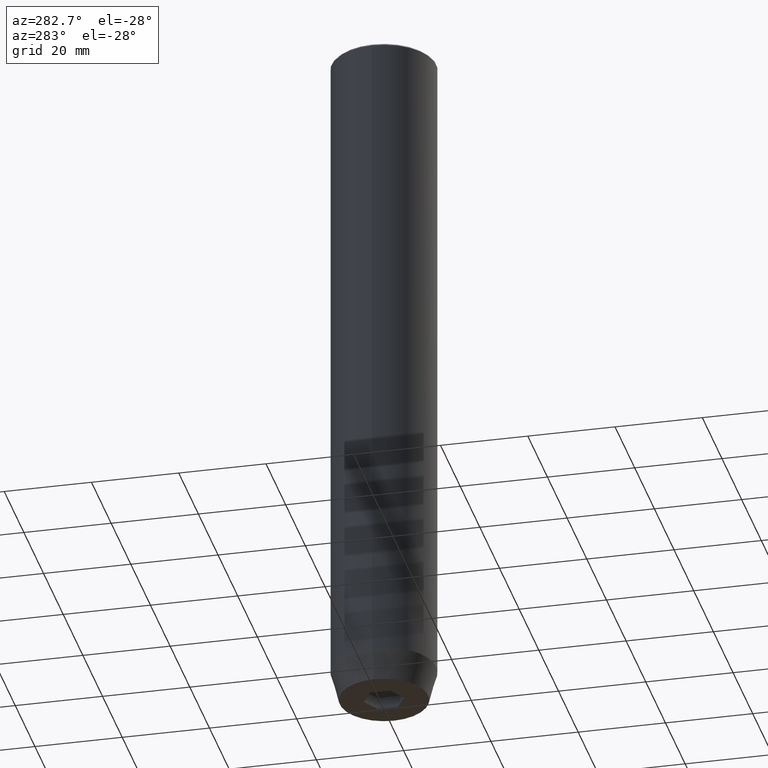
[diagram: clean part render]
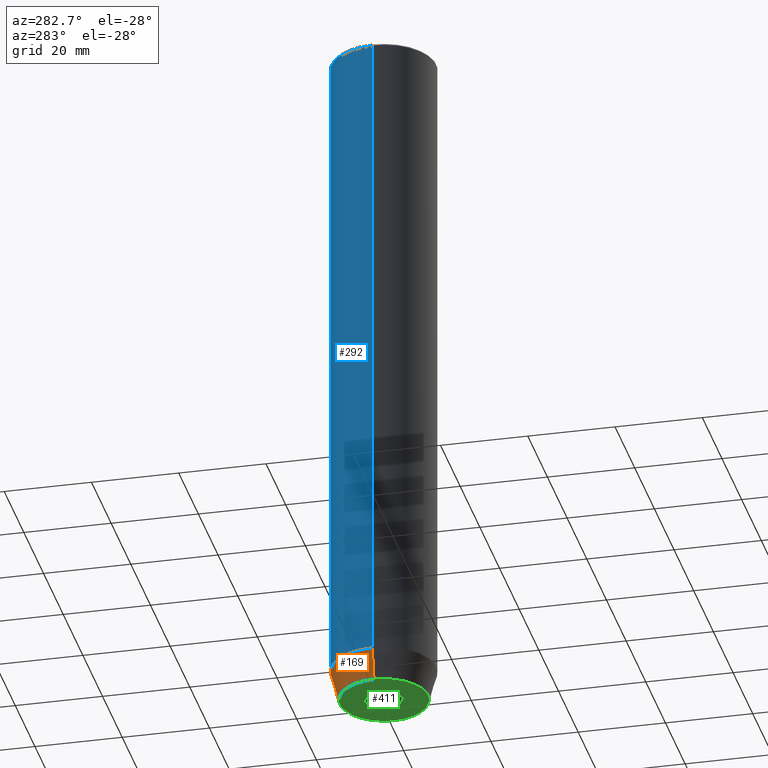
[diagram: same view with three faces highlighted in distinct colors, each labeled with its STEP entity id]
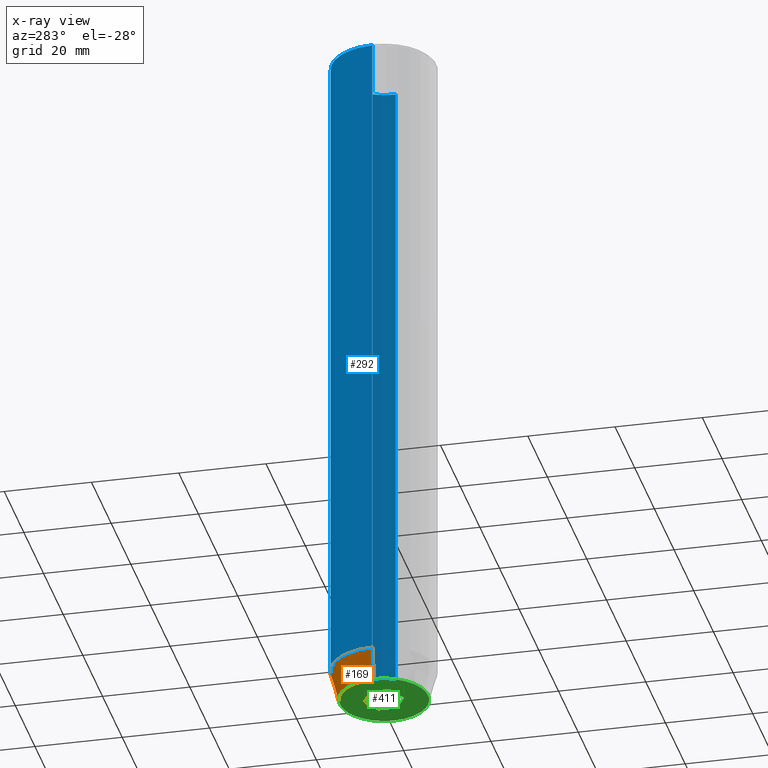
[diagram: x-ray of the same camera — body ghosted, the three highlighted faces saturated]
A machine part, auxiliary view with three faces highlighted in distinct colors.
The next image is the same camera in x-ray (body ghosted, the three faces saturated) — at least one of them is partly hidden behind the body in this view.
Their STEP definitions:

[orange] entity #169 — the highlighted conical surface has half-angle 15 deg.
#6 = EDGE_CURVE ( 'NONE', #458, #558, #79, .T. ) ;
#29 = DIRECTION ( 'NONE',  ( 0.2588190451025212391, 0.000000000000000000, 0.9659258262890680902 ) ) ;
#32 = VECTOR ( 'NONE', #29, 1000.000000000000114 ) ;
#38 = LINE ( 'NONE', #431, #445 ) ;
#60 = EDGE_CURVE ( 'NONE', #583, #458, #381, .T. ) ;
#79 = CIRCLE ( 'NONE', #341, 12.00000000000000000 ) ;
#81 = ORIENTED_EDGE ( 'NONE', *, *, #454, .T. ) ;
#110 = AXIS2_PLACEMENT_3D ( 'NONE', #384, #571, #113 ) ;
#113 = DIRECTION ( 'NONE',  ( 1.000000000000000000, 0.000000000000000000, 0.000000000000000000 ) ) ;
#117 = DIRECTION ( 'NONE',  ( -0.000000000000000000, -0.000000000000000000, 1.000000000000000000 ) ) ;
#169 = ADVANCED_FACE ( 'NONE', ( #425 ), #514, .T. ) ;
#198 = VERTEX_POINT ( 'NONE', #478 ) ;
#204 = DIRECTION ( 'NONE',  ( -0.2588190451025212391, 3.169619151431771721E-17, 0.9659258262890680902 ) ) ;
#214 = EDGE_CURVE ( 'NONE', #198, #558, #38, .T. ) ;
#223 = ORIENTED_EDGE ( 'NONE', *, *, #60, .F. ) ;
#286 = CARTESIAN_POINT ( 'NONE',  ( 0.000000000000000000, 0.000000000000000000, -152.9999999999999716 ) ) ;
#287 = CARTESIAN_POINT ( 'NONE',  ( 12.00000000000000000, 0.000000000000000000, -152.9999999999999716 ) ) ;
#300 = DIRECTION ( 'NONE',  ( 1.000000000000000000, 0.000000000000000000, 0.000000000000000000 ) ) ;
#341 = AXIS2_PLACEMENT_3D ( 'NONE', #286, #117, #300 ) ;
#345 = DIRECTION ( 'NONE',  ( 1.000000000000000000, 0.000000000000000000, 0.000000000000000000 ) ) ;
#375 = AXIS2_PLACEMENT_3D ( 'NONE', #573, #527, #345 ) ;
#381 = LINE ( 'NONE', #426, #32 ) ;
#384 = CARTESIAN_POINT ( 'NONE',  ( 0.000000000000000000, 0.000000000000000000, -152.9999999999999716 ) ) ;
#425 = FACE_OUTER_BOUND ( 'NONE', #587, .T. ) ;
#426 = CARTESIAN_POINT ( 'NONE',  ( 12.00000000000000000, 0.000000000000000000, -152.9999999999999716 ) ) ;
#427 = CARTESIAN_POINT ( 'NONE',  ( -12.00000000000000000, 1.469576158976823947E-15, -152.9999999999999716 ) ) ;
#431 = CARTESIAN_POINT ( 'NONE',  ( -12.00000000000000000, 1.469576158976823947E-15, -152.9999999999999716 ) ) ;
#444 = ORIENTED_EDGE ( 'NONE', *, *, #214, .T. ) ;
#445 = VECTOR ( 'NONE', #204, 1000.000000000000114 ) ;
#454 = EDGE_CURVE ( 'NONE', #583, #198, #529, .T. ) ;
#458 = VERTEX_POINT ( 'NONE', #287 ) ;
#478 = CARTESIAN_POINT ( 'NONE',  ( -10.12435565298212836, 1.354726066681110655E-15, -160.0000000000000000 ) ) ;
#514 = CONICAL_SURFACE ( 'NONE', #110, 12.00000000000000000, 0.2617993877991499629 ) ;
#527 = DIRECTION ( 'NONE',  ( -0.000000000000000000, -0.000000000000000000, 1.000000000000000000 ) ) ;
#529 = CIRCLE ( 'NONE', #375, 10.12435565298212836 ) ;
#549 = ORIENTED_EDGE ( 'NONE', *, *, #6, .F. ) ;
#558 = VERTEX_POINT ( 'NONE', #427 ) ;
#568 = CARTESIAN_POINT ( 'NONE',  ( 10.12435565298212836, 0.000000000000000000, -160.0000000000000000 ) ) ;
#571 = DIRECTION ( 'NONE',  ( -0.000000000000000000, -0.000000000000000000, 1.000000000000000000 ) ) ;
#573 = CARTESIAN_POINT ( 'NONE',  ( 0.000000000000000000, 0.000000000000000000, -160.0000000000000000 ) ) ;
#583 = VERTEX_POINT ( 'NONE', #568 ) ;
#587 = EDGE_LOOP ( 'NONE', ( #81, #444, #549, #223 ) ) ;

[blue] entity #292 — the highlighted cylindrical surface (partial cylindrical patch) has radius 12 mm, axis along (-0, -0, 1).
#6 = EDGE_CURVE ( 'NONE', #458, #558, #79, .T. ) ;
#18 = CARTESIAN_POINT ( 'NONE',  ( 0.000000000000000000, 0.000000000000000000, 0.000000000000000000 ) ) ;
#26 = CARTESIAN_POINT ( 'NONE',  ( 0.000000000000000000, 0.000000000000000000, -0.4999999999999779066 ) ) ;
#79 = CIRCLE ( 'NONE', #341, 12.00000000000000000 ) ;
#88 = CARTESIAN_POINT ( 'NONE',  ( 12.00000000000000000, 0.000000000000000000, -0.4999999999999779066 ) ) ;
#91 = ORIENTED_EDGE ( 'NONE', *, *, #488, .T. ) ;
#97 = VECTOR ( 'NONE', #158, 1000.000000000000000 ) ;
#117 = DIRECTION ( 'NONE',  ( -0.000000000000000000, -0.000000000000000000, 1.000000000000000000 ) ) ;
#128 = CIRCLE ( 'NONE', #183, 12.00000000000000000 ) ;
#151 = LINE ( 'NONE', #428, #97 ) ;
#158 = DIRECTION ( 'NONE',  ( -0.000000000000000000, -0.000000000000000000, 1.000000000000000000 ) ) ;
#183 = AXIS2_PLACEMENT_3D ( 'NONE', #26, #193, #379 ) ;
#186 = VERTEX_POINT ( 'NONE', #579 ) ;
#193 = DIRECTION ( 'NONE',  ( 0.000000000000000000, 0.000000000000000000, -1.000000000000000000 ) ) ;
#200 = LINE ( 'NONE', #468, #538 ) ;
#215 = AXIS2_PLACEMENT_3D ( 'NONE', #18, #412, #555 ) ;
#237 = EDGE_CURVE ( 'NONE', #458, #334, #151, .T. ) ;
#269 = CYLINDRICAL_SURFACE ( 'NONE', #215, 12.00000000000000000 ) ;
#275 = FACE_OUTER_BOUND ( 'NONE', #355, .T. ) ;
#286 = CARTESIAN_POINT ( 'NONE',  ( 0.000000000000000000, 0.000000000000000000, -152.9999999999999716 ) ) ;
#287 = CARTESIAN_POINT ( 'NONE',  ( 12.00000000000000000, 0.000000000000000000, -152.9999999999999716 ) ) ;
#292 = ADVANCED_FACE ( 'NONE', ( #275 ), #269, .T. ) ;
#300 = DIRECTION ( 'NONE',  ( 1.000000000000000000, 0.000000000000000000, 0.000000000000000000 ) ) ;
#334 = VERTEX_POINT ( 'NONE', #88 ) ;
#341 = AXIS2_PLACEMENT_3D ( 'NONE', #286, #117, #300 ) ;
#355 = EDGE_LOOP ( 'NONE', ( #473, #91, #545, #358 ) ) ;
#358 = ORIENTED_EDGE ( 'NONE', *, *, #237, .F. ) ;
#379 = DIRECTION ( 'NONE',  ( 1.000000000000000000, 0.000000000000000000, 0.000000000000000000 ) ) ;
#383 = DIRECTION ( 'NONE',  ( -0.000000000000000000, -0.000000000000000000, 1.000000000000000000 ) ) ;
#412 = DIRECTION ( 'NONE',  ( -0.000000000000000000, -0.000000000000000000, 1.000000000000000000 ) ) ;
#427 = CARTESIAN_POINT ( 'NONE',  ( -12.00000000000000000, 1.469576158976823947E-15, -152.9999999999999716 ) ) ;
#428 = CARTESIAN_POINT ( 'NONE',  ( 12.00000000000000000, 0.000000000000000000, 0.000000000000000000 ) ) ;
#447 = EDGE_CURVE ( 'NONE', #186, #334, #128, .T. ) ;
#458 = VERTEX_POINT ( 'NONE', #287 ) ;
#468 = CARTESIAN_POINT ( 'NONE',  ( -12.00000000000000000, 1.469576158976823947E-15, 0.000000000000000000 ) ) ;
#473 = ORIENTED_EDGE ( 'NONE', *, *, #6, .T. ) ;
#488 = EDGE_CURVE ( 'NONE', #558, #186, #200, .T. ) ;
#538 = VECTOR ( 'NONE', #383, 1000.000000000000000 ) ;
#545 = ORIENTED_EDGE ( 'NONE', *, *, #447, .T. ) ;
#555 = DIRECTION ( 'NONE',  ( 1.000000000000000000, 0.000000000000000000, 0.000000000000000000 ) ) ;
#558 = VERTEX_POINT ( 'NONE', #427 ) ;
#579 = CARTESIAN_POINT ( 'NONE',  ( -12.00000000000000000, 1.469576158976823947E-15, -0.4999999999999779066 ) ) ;

[green] entity #411 — the highlighted planar face has unit normal (0, 0, -1).
#2 = EDGE_CURVE ( 'NONE', #234, #451, #333, .T. ) ;
#11 = CARTESIAN_POINT ( 'NONE',  ( 0.000000000000000000, 10.12435565298212836, -160.0000000000000000 ) ) ;
#25 = ORIENTED_EDGE ( 'NONE', *, *, #212, .F. ) ;
#35 = LINE ( 'NONE', #62, #176 ) ;
#43 = DIRECTION ( 'NONE',  ( 0.8660254037844387076, 0.5000000000000001110, 0.000000000000000000 ) ) ;
#53 = PLANE ( 'NONE',  #574 ) ;
#55 = VECTOR ( 'NONE', #565, 1000.000000000000000 ) ;
#62 = CARTESIAN_POINT ( 'NONE',  ( -4.000000000000000000, 0.000000000000000000, -160.0000000000000000 ) ) ;
#68 = EDGE_CURVE ( 'NONE', #451, #108, #350, .T. ) ;
#73 = VECTOR ( 'NONE', #523, 1000.000000000000114 ) ;
#76 = ORIENTED_EDGE ( 'NONE', *, *, #496, .F. ) ;
#90 = EDGE_CURVE ( 'NONE', #108, #581, #35, .T. ) ;
#96 = AXIS2_PLACEMENT_3D ( 'NONE', #116, #434, #475 ) ;
#103 = ORIENTED_EDGE ( 'NONE', *, *, #68, .F. ) ;
#106 = CARTESIAN_POINT ( 'NONE',  ( 4.000000000000000000, 2.309401076758503368, -160.0000000000000000 ) ) ;
#108 = VERTEX_POINT ( 'NONE', #259 ) ;
#116 = CARTESIAN_POINT ( 'NONE',  ( 0.000000000000000000, 0.000000000000000000, -160.0000000000000000 ) ) ;
#145 = CARTESIAN_POINT ( 'NONE',  ( 4.000000000000000000, 0.000000000000000000, -160.0000000000000000 ) ) ;
#149 = DIRECTION ( 'NONE',  ( 0.8660254037844385966, -0.5000000000000001110, 0.000000000000000000 ) ) ;
#176 = VECTOR ( 'NONE', #235, 1000.000000000000000 ) ;
#177 = ORIENTED_EDGE ( 'NONE', *, *, #2, .F. ) ;
#182 = DIRECTION ( 'NONE',  ( 0.000000000000000000, 0.000000000000000000, -1.000000000000000000 ) ) ;
#191 = LINE ( 'NONE', #376, #338 ) ;
#198 = VERTEX_POINT ( 'NONE', #478 ) ;
#202 = VECTOR ( 'NONE', #43, 999.9999999999998863 ) ;
#209 = LINE ( 'NONE', #313, #202 ) ;
#212 = EDGE_CURVE ( 'NONE', #581, #216, #209, .T. ) ;
#216 = VERTEX_POINT ( 'NONE', #470 ) ;
#221 = FACE_BOUND ( 'NONE', #460, .T. ) ;
#233 = ORIENTED_EDGE ( 'NONE', *, *, #90, .F. ) ;
#234 = VERTEX_POINT ( 'NONE', #570 ) ;
#235 = DIRECTION ( 'NONE',  ( 0.000000000000000000, 1.000000000000000000, 0.000000000000000000 ) ) ;
#248 = CIRCLE ( 'NONE', #96, 10.12435565298212836 ) ;
#259 = CARTESIAN_POINT ( 'NONE',  ( -4.000000000000000000, -2.309401076758503368, -160.0000000000000000 ) ) ;
#273 = VERTEX_POINT ( 'NONE', #106 ) ;
#291 = CARTESIAN_POINT ( 'NONE',  ( -4.000000000000000000, 2.309401076758503368, -160.0000000000000000 ) ) ;
#294 = CARTESIAN_POINT ( 'NONE',  ( -2.000000000000000888, -3.464101615137754386, -160.0000000000000000 ) ) ;
#304 = VECTOR ( 'NONE', #566, 1000.000000000000114 ) ;
#313 = CARTESIAN_POINT ( 'NONE',  ( -2.000000000000000000, 3.464101615137754830, -160.0000000000000000 ) ) ;
#333 = LINE ( 'NONE', #518, #73 ) ;
#337 = LINE ( 'NONE', #145, #55 ) ;
#338 = VECTOR ( 'NONE', #149, 1000.000000000000000 ) ;
#345 = DIRECTION ( 'NONE',  ( 1.000000000000000000, 0.000000000000000000, 0.000000000000000000 ) ) ;
#346 = CARTESIAN_POINT ( 'NONE',  ( 4.336808689942017736E-16, -4.618802153517006737, -160.0000000000000000 ) ) ;
#350 = LINE ( 'NONE', #294, #304 ) ;
#361 = ORIENTED_EDGE ( 'NONE', *, *, #548, .F. ) ;
#366 = DIRECTION ( 'NONE',  ( -1.000000000000000000, 0.000000000000000000, -0.000000000000000000 ) ) ;
#375 = AXIS2_PLACEMENT_3D ( 'NONE', #573, #527, #345 ) ;
#376 = CARTESIAN_POINT ( 'NONE',  ( 2.000000000000000444, 3.464101615137754386, -160.0000000000000000 ) ) ;
#388 = EDGE_LOOP ( 'NONE', ( #489, #361 ) ) ;
#409 = FACE_OUTER_BOUND ( 'NONE', #388, .T. ) ;
#411 = ADVANCED_FACE ( 'NONE', ( #221, #409 ), #53, .T. ) ;
#434 = DIRECTION ( 'NONE',  ( -0.000000000000000000, -0.000000000000000000, 1.000000000000000000 ) ) ;
#451 = VERTEX_POINT ( 'NONE', #346 ) ;
#454 = EDGE_CURVE ( 'NONE', #583, #198, #529, .T. ) ;
#460 = EDGE_LOOP ( 'NONE', ( #25, #233, #103, #177, #515, #76 ) ) ;
#470 = CARTESIAN_POINT ( 'NONE',  ( -4.336808689942017736E-16, 4.618802153517006737, -160.0000000000000000 ) ) ;
#475 = DIRECTION ( 'NONE',  ( 1.000000000000000000, 0.000000000000000000, 0.000000000000000000 ) ) ;
#478 = CARTESIAN_POINT ( 'NONE',  ( -10.12435565298212836, 1.354726066681110655E-15, -160.0000000000000000 ) ) ;
#489 = ORIENTED_EDGE ( 'NONE', *, *, #454, .F. ) ;
#496 = EDGE_CURVE ( 'NONE', #216, #273, #191, .T. ) ;
#515 = ORIENTED_EDGE ( 'NONE', *, *, #520, .F. ) ;
#518 = CARTESIAN_POINT ( 'NONE',  ( 2.000000000000000888, -3.464101615137754386, -160.0000000000000000 ) ) ;
#520 = EDGE_CURVE ( 'NONE', #273, #234, #337, .T. ) ;
#523 = DIRECTION ( 'NONE',  ( -0.8660254037844384856, -0.5000000000000002220, 0.000000000000000000 ) ) ;
#527 = DIRECTION ( 'NONE',  ( -0.000000000000000000, -0.000000000000000000, 1.000000000000000000 ) ) ;
#529 = CIRCLE ( 'NONE', #375, 10.12435565298212836 ) ;
#548 = EDGE_CURVE ( 'NONE', #198, #583, #248, .T. ) ;
#565 = DIRECTION ( 'NONE',  ( 0.000000000000000000, -1.000000000000000000, 0.000000000000000000 ) ) ;
#566 = DIRECTION ( 'NONE',  ( -0.8660254037844384856, 0.5000000000000002220, 0.000000000000000000 ) ) ;
#568 = CARTESIAN_POINT ( 'NONE',  ( 10.12435565298212836, 0.000000000000000000, -160.0000000000000000 ) ) ;
#570 = CARTESIAN_POINT ( 'NONE',  ( 4.000000000000000000, -2.309401076758502480, -160.0000000000000000 ) ) ;
#573 = CARTESIAN_POINT ( 'NONE',  ( 0.000000000000000000, 0.000000000000000000, -160.0000000000000000 ) ) ;
#574 = AXIS2_PLACEMENT_3D ( 'NONE', #11, #182, #366 ) ;
#581 = VERTEX_POINT ( 'NONE', #291 ) ;
#583 = VERTEX_POINT ( 'NONE', #568 ) ;